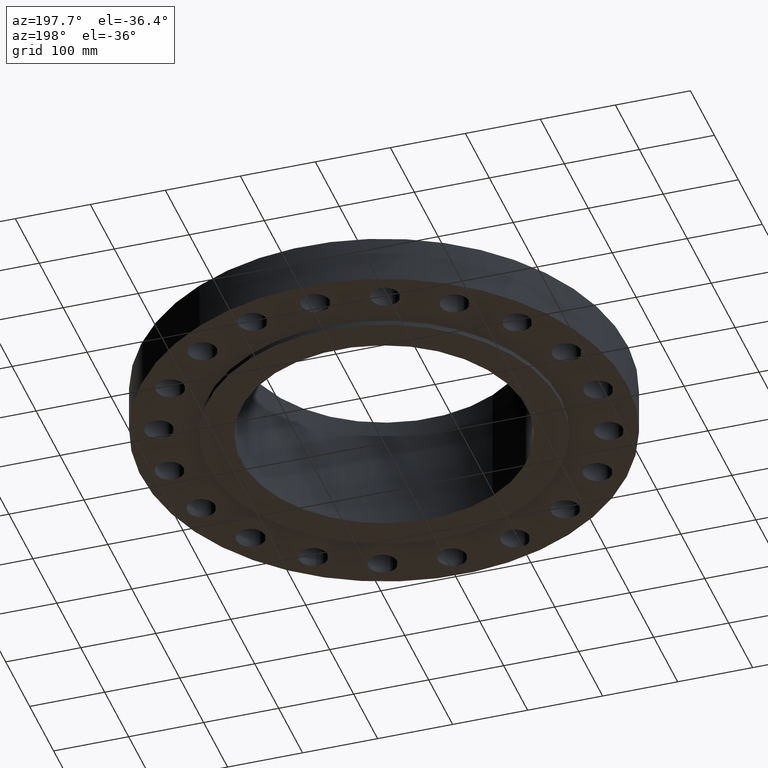
[diagram: clean part render]
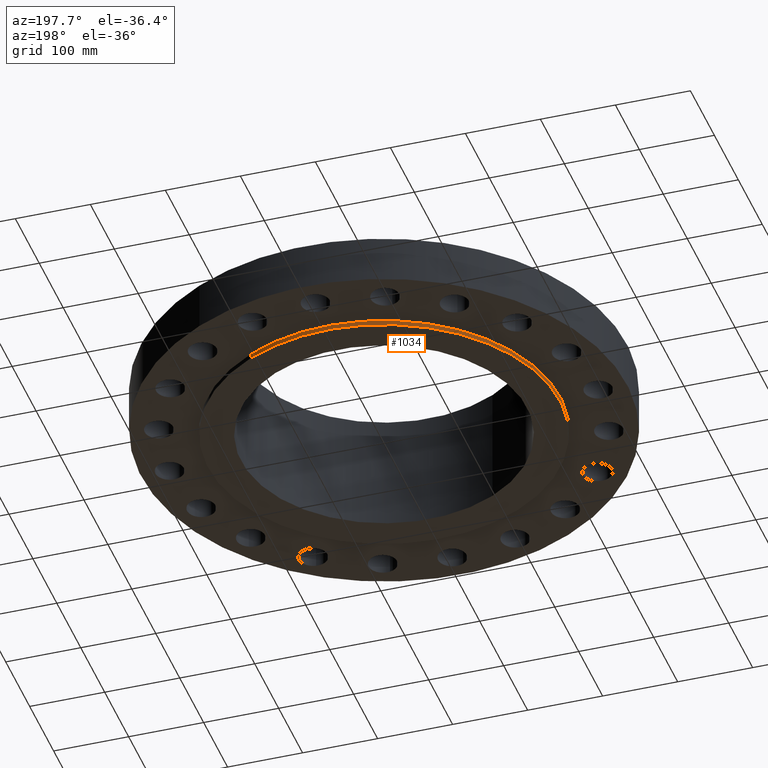
[diagram: same view with one face highlighted and labeled with its STEP entity id]
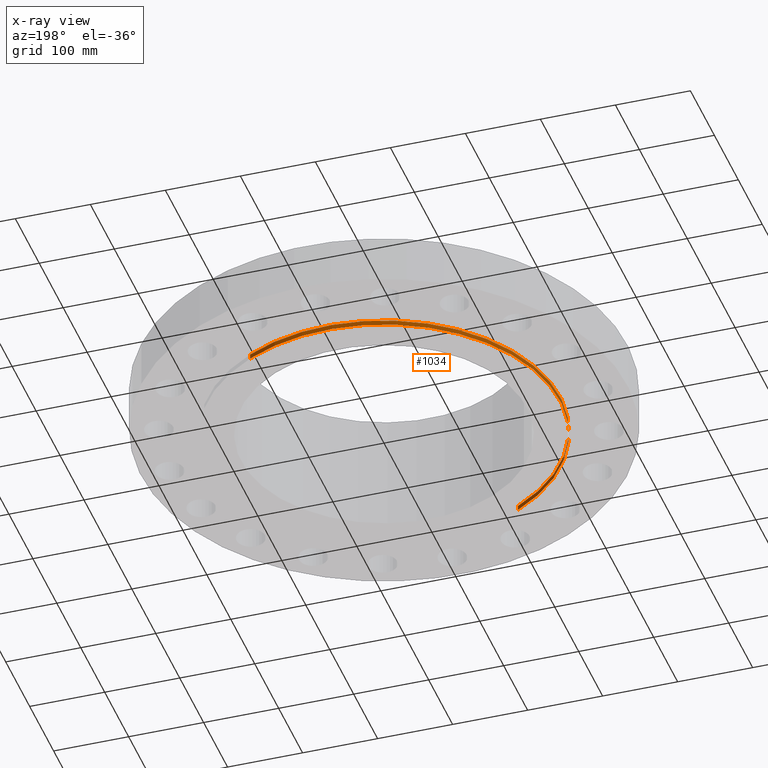
[diagram: x-ray of the same camera — body ghosted, the highlighted face saturated]
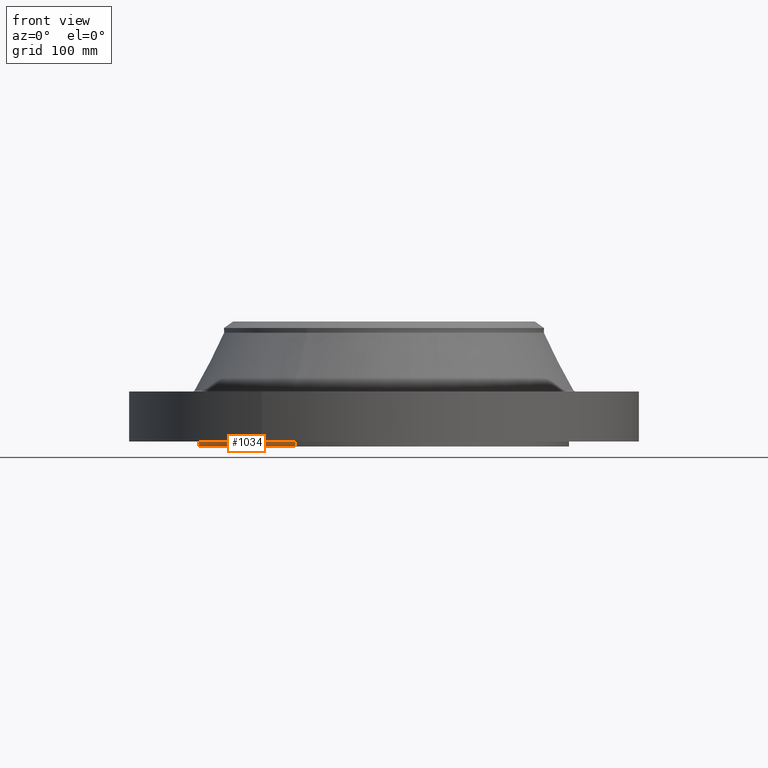
[diagram: same view with one face highlighted and labeled with its STEP entity id]
A machine part, auxiliary view. The second image highlights one B-rep face of the part: STEP entity #1034.
The next image is the same camera in x-ray: the body ghosted, the highlighted face saturated — about 0% of this face is hidden behind the body in this view.
A second angle (front view) of the same face is appended — the face is thin or edge-on in the first view.
In plain terms, the highlighted cylindrical surface (partial cylindrical patch) has radius 234.95 mm, axis along (0, 0, -1).
Its self-contained STEP definition (entity closure, byte-faithful):
#162=AXIS2_PLACEMENT_3D('Circle Axis2P3D',#160,#161,$) ;
#1021=AXIS2_PLACEMENT_3D('Cylinder Axis2P3D',#1018,#1019,#1020) ;
#1025=AXIS2_PLACEMENT_3D('Circle Axis2P3D',#1023,#1024,$) ;
#155=CARTESIAN_POINT('Vertex',(4.43468623211,8.11763869752,-4.66720275725E-012)) ;
#157=CARTESIAN_POINT('Vertex',(-4.43468623211,-8.11763869752,-4.66720275725E-012)) ;
#160=CARTESIAN_POINT('Axis2P3D Location',(0.,-3.99918068914E-012,0.)) ;
#989=CARTESIAN_POINT('Vertex',(4.43468623208,8.11763869756,-0.250000000001)) ;
#991=CARTESIAN_POINT('Vertex',(-4.43468623208,-8.1176386975,-0.250000000001)) ;
#994=CARTESIAN_POINT('Line Origine',(4.43468623211,8.11763869752,-0.124999999997)) ;
#999=CARTESIAN_POINT('Line Origine',(-4.43468623211,-8.11763869752,-0.124999999997)) ;
#1018=CARTESIAN_POINT('Axis2P3D Location',(0.,0.,2.87500000001)) ;
#1023=CARTESIAN_POINT('Axis2P3D Location',(0.,0.,-0.250000000001)) ;
#161=DIRECTION('Axis2P3D Direction',(0.,0.,-0.0393700787402)) ;
#995=DIRECTION('Vector Direction',(0.,0.,-0.0393700787402)) ;
#1000=DIRECTION('Vector Direction',(0.,0.,-0.0393700787402)) ;
#1019=DIRECTION('Axis2P3D Direction',(0.,0.,-0.0393700787402)) ;
#1020=DIRECTION('Axis2P3D XDirection',(-0.0188750212049,-0.0345504945626,0.)) ;
#1024=DIRECTION('Axis2P3D Direction',(0.,0.,-0.0393700787402)) ;
#996=VECTOR('Line Direction',#995,0.0393700787402) ;
#1001=VECTOR('Line Direction',#1000,0.0393700787402) ;
#1029=ORIENTED_EDGE('',*,*,#1027,.F.) ;
#1030=ORIENTED_EDGE('',*,*,#1003,.T.) ;
#1031=ORIENTED_EDGE('',*,*,#164,.T.) ;
#1032=ORIENTED_EDGE('',*,*,#998,.F.) ;
#1034=ADVANCED_FACE('PartBody',(#1033),#1022,.T.) ;
#163=CIRCLE('generated circle',#162,9.25000000003) ;
#1026=CIRCLE('generated circle',#1025,9.25000000004) ;
#1022=CYLINDRICAL_SURFACE('generated cylinder',#1021,9.25000000004) ;
#164=EDGE_CURVE('',#158,#156,#163,.T.) ;
#998=EDGE_CURVE('',#990,#156,#997,.F.) ;
#1003=EDGE_CURVE('',#992,#158,#1002,.F.) ;
#1027=EDGE_CURVE('',#992,#990,#1026,.T.) ;
#1028=EDGE_LOOP('',(#1029,#1030,#1031,#1032)) ;
#1033=FACE_OUTER_BOUND('',#1028,.T.) ;
#997=LINE('Line',#994,#996) ;
#1002=LINE('Line',#999,#1001) ;
#156=VERTEX_POINT('',#155) ;
#158=VERTEX_POINT('',#157) ;
#990=VERTEX_POINT('',#989) ;
#992=VERTEX_POINT('',#991) ;